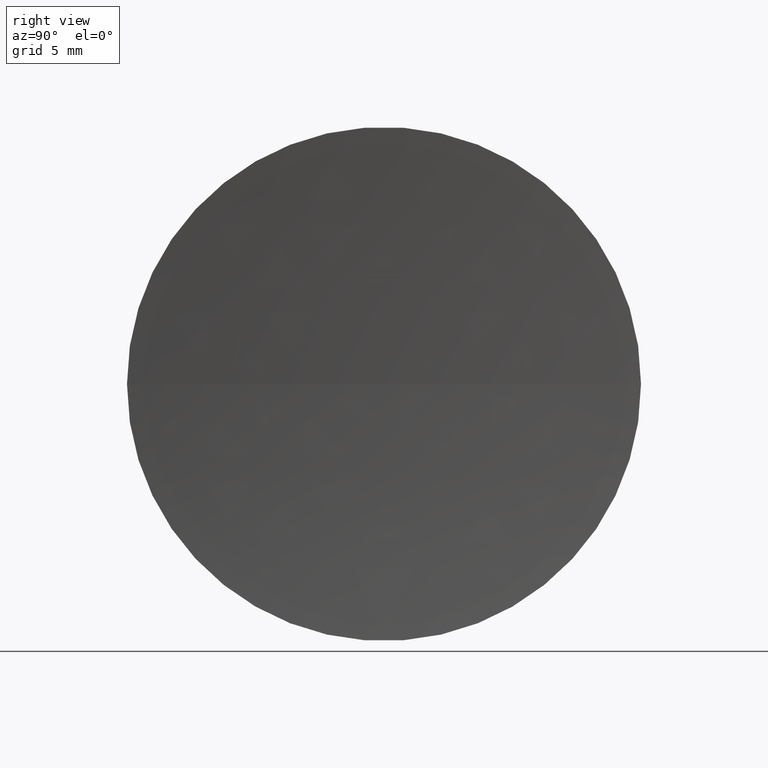
[diagram: clean part render]
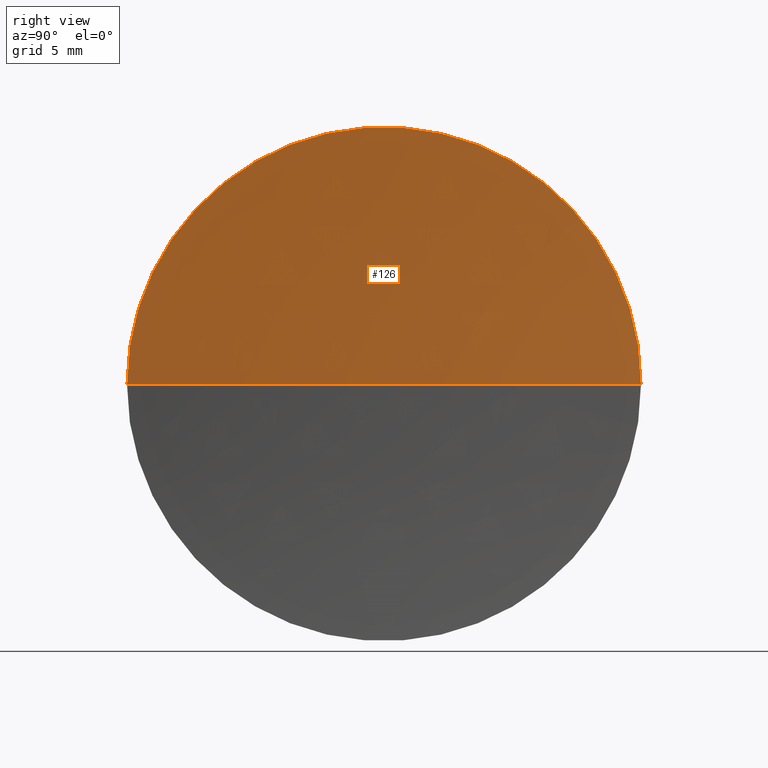
[diagram: same view with one face highlighted and labeled with its STEP entity id]
A machine part, right view. The second image highlights one B-rep face of the part: STEP entity #126.
In plain terms, the highlighted spherical surface has radius 120 mm.
Its self-contained STEP definition (entity closure, byte-faithful):
#18 = VERTEX_POINT ( 'NONE', #141 ) ;
#35 = DIRECTION ( 'NONE',  ( 1.000000000000000000, 0.0000000000000000000, 0.0000000000000000000 ) ) ;
#36 = ORIENTED_EDGE ( 'NONE', *, *, #91, .F. ) ;
#37 = CARTESIAN_POINT ( 'NONE',  ( 126.9650110756947500, 65.21684047094034000, 0.0000000000000000000 ) ) ;
#49 = DIRECTION ( 'NONE',  ( -6.938893903907230300E-016, 1.000000000000000000, 0.0000000000000000000 ) ) ;
#51 = ORIENTED_EDGE ( 'NONE', *, *, #103, .T. ) ;
#59 = CARTESIAN_POINT ( 'NONE',  ( 126.3121936984948400, 65.21684047094024100, 0.0000000000000000000 ) ) ;
#64 = ORIENTED_EDGE ( 'NONE', *, *, #125, .F. ) ;
#69 = DIRECTION ( 'NONE',  ( -1.000000000000000000, -6.937607244762875000E-016, -0.0000000000000000000 ) ) ;
#70 = CARTESIAN_POINT ( 'NONE',  ( 246.3121936984948100, 65.21684047094031200, 0.0000000000000000000 ) ) ;
#77 = EDGE_LOOP ( 'NONE', ( #36, #51, #64 ) ) ;
#82 = FACE_OUTER_BOUND ( 'NONE', #77, .T. ) ;
#91 = EDGE_CURVE ( 'NONE', #173, #18, #170, .T. ) ;
#101 = DIRECTION ( 'NONE',  ( 0.0000000000000000000, 1.000000000000000000, 1.224646799147353200E-016 ) ) ;
#103 = EDGE_CURVE ( 'NONE', #173, #190, #163, .T. ) ;
#105 = DIRECTION ( 'NONE',  ( -8.496118506040342700E-032, 1.224646799147353200E-016, -1.000000000000000000 ) ) ;
#111 = SPHERICAL_SURFACE ( 'NONE', #175, 119.9999999999999700 ) ;
#112 = CARTESIAN_POINT ( 'NONE',  ( 246.3121936984948100, 65.21684047094031200, 0.0000000000000000000 ) ) ;
#116 = DIRECTION ( 'NONE',  ( 0.0000000000000000000, -0.0000000000000000000, 1.000000000000000000 ) ) ;
#125 = EDGE_CURVE ( 'NONE', #18, #190, #133, .T. ) ;
#126 = ADVANCED_FACE ( 'NONE', ( #82 ), #111, .F. ) ;
#127 = CARTESIAN_POINT ( 'NONE',  ( 126.9650110756947500, 52.71684047094015600, -1.530808498934200400E-015 ) ) ;
#133 = CIRCLE ( 'NONE', #164, 119.9999999999999700 ) ;
#141 = CARTESIAN_POINT ( 'NONE',  ( 126.9650110756947500, 77.71684047094041100, 0.0000000000000000000 ) ) ;
#146 = AXIS2_PLACEMENT_3D ( 'NONE', #37, #69, #155 ) ;
#152 = DIRECTION ( 'NONE',  ( 0.0000000000000000000, 0.0000000000000000000, -1.000000000000000000 ) ) ;
#155 = DIRECTION ( 'NONE',  ( 0.0000000000000000000, -1.000000000000000000, 0.0000000000000000000 ) ) ;
#163 = CIRCLE ( 'NONE', #192, 119.9999999999999700 ) ;
#164 = AXIS2_PLACEMENT_3D ( 'NONE', #112, #116, #35 ) ;
#170 = CIRCLE ( 'NONE', #146, 12.50000000000004600 ) ;
#173 = VERTEX_POINT ( 'NONE', #127 ) ;
#175 = AXIS2_PLACEMENT_3D ( 'NONE', #180, #152, #49 ) ;
#180 = CARTESIAN_POINT ( 'NONE',  ( 246.3121936984948100, 65.21684047094031200, 0.0000000000000000000 ) ) ;
#190 = VERTEX_POINT ( 'NONE', #59 ) ;
#192 = AXIS2_PLACEMENT_3D ( 'NONE', #70, #105, #101 ) ;